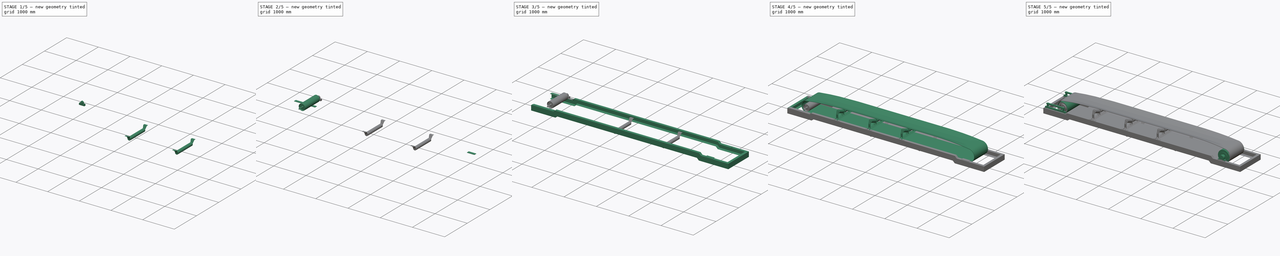
[diagram: build sequence overview — one tinted view per stage of 5, left to right]
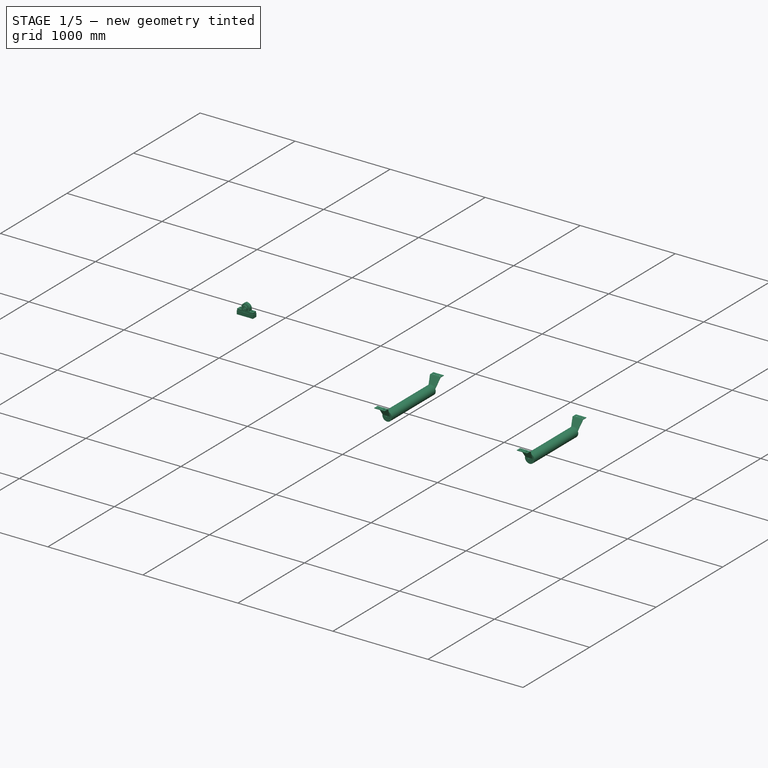
[diagram: stage 1 of 5 — iso view after this stage's code; geometry added in this stage tinted green]
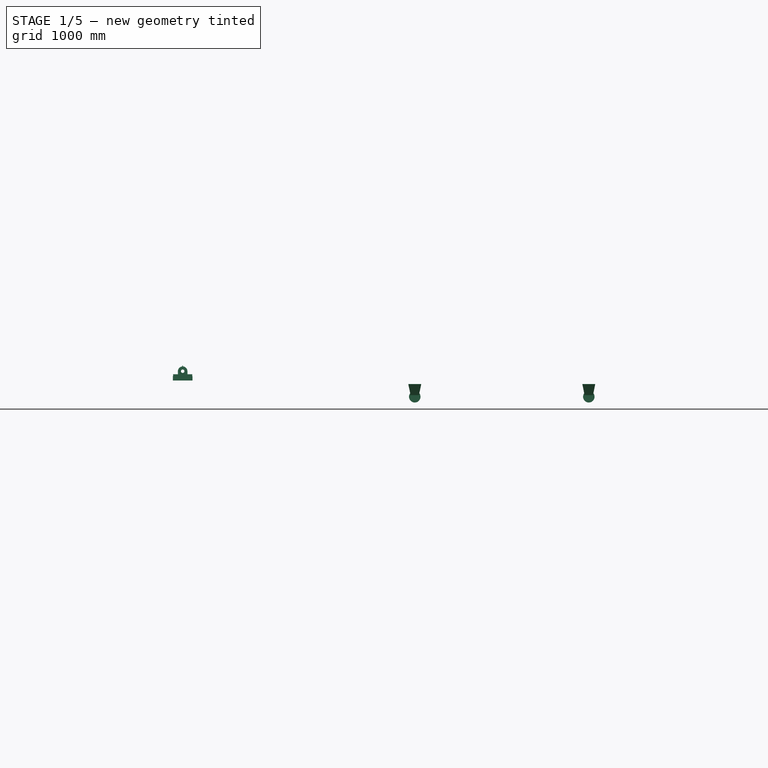
[diagram: stage 1 of 5 — front view after this stage's code; geometry added in this stage tinted green]
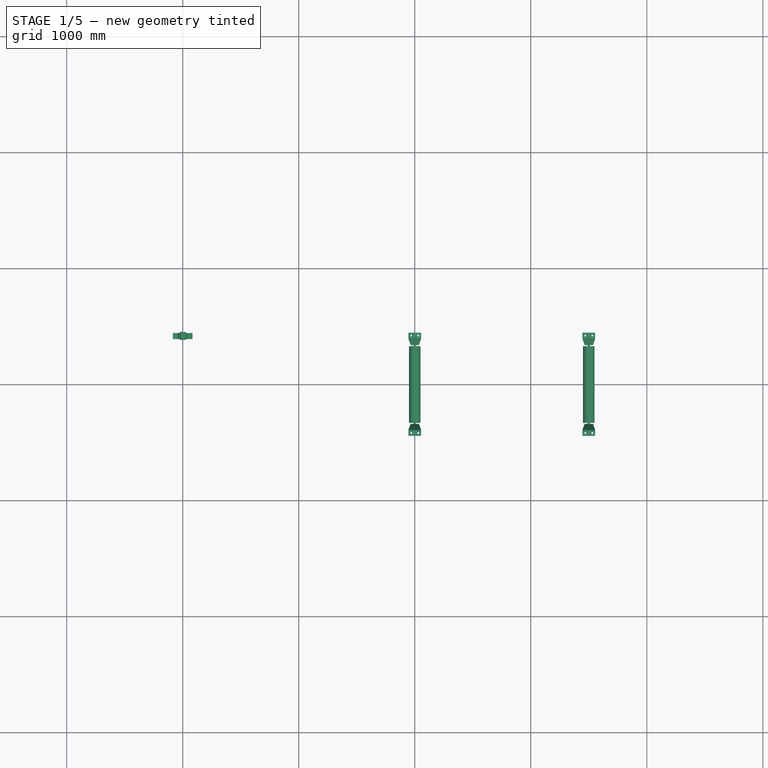
[diagram: stage 1 of 5 — top view after this stage's code; geometry added in this stage tinted green]
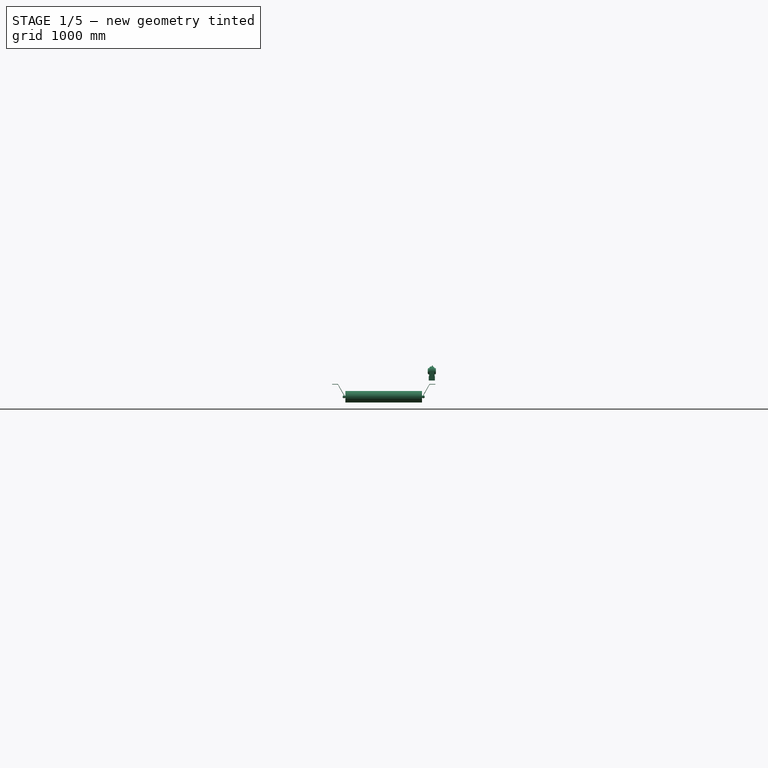
[diagram: stage 1 of 5 — right view after this stage's code; geometry added in this stage tinted green]
FCSTD DOCUMENT  (FreeCAD 0.21R33668 +26 (Git))
Label: BeltCv600BAssy2
License: All rights reserved
LicenseURL: https://en.wikipedia.org/wiki/All_rights_reserved
objects: Sketcher::SketchObject×12, Part::FeaturePython×10, App::Part×9, Part::Feature×8, Part::Extrusion×7, Part::Mirroring×3, Spreadsheet::Sheet×3, Part::Compound×2, Part::Sweep×2, TechDraw::DrawSVGTemplate×1, TechDraw::DrawViewPart×1, TechDraw::DrawPage×1, Part::MultiFuse×1
note: 43 computed .brp shape members not serialized (recipe doc carries the construction recipe); baked Part::Feature solids carry a one-line shape summary decoded from their .brp

FEATURE [Part::Feature] Part__Feature003  label="UCP206FC"
  Placement = pos=(-0.4,-415,1.07e-13) rot=(1,0,0;1.5708rad)
  shape: bbox 165 x 70 x 92.1 mm, 127 faces (baked)
FEATURE [Part::FeaturePython] Clone  label="UCP206FC001"  # Draft clone (typed FeaturePython)
  AttacherType = Attacher::AttachEngine3D
  Fuse = false
  Objects = -> [Part__Feature003]
  Placement = pos=(-0.4,415,1.07e-13) rot=(0,0.707107,0.707107;3.14159rad)
  Scale = (1,1,1)
FEATURE [Part::FeaturePython] Rectang  # WARN: FeaturePython — macro-defined, semantics opaque (R4)
  B = 200
  H = 60
  Placement = pos=(4495.9,-414.9,-188.9) rot=(0,0,1;0rad)
  sface = 0
FEATURE [Sketcher::SketchObject] Sketch011
  FullyConstrained = true
  MapMode = 5
  Placement = pos=(-0.4,-415,-42.9) rot=(1,0,0;3.14159rad)
  Support = -> [Part__Feature003]
  sketch-geometry (5):
    g0: LineSegment StartX=-85 StartY=-26.5 StartZ=0 EndX=-85 EndY=26.5 EndZ=0
    g1: LineSegment StartX=-85 StartY=26.5 StartZ=0 EndX=85 EndY=26.5 EndZ=0
    g2: LineSegment StartX=85 StartY=26.5 StartZ=0 EndX=85 EndY=-26.5 EndZ=0
    g3: LineSegment StartX=85 StartY=-26.5 StartZ=0 EndX=-85 EndY=-26.5 EndZ=0
    g4: GeomPoint X=0 Y=0 Z=0
  constraints (12):
    c: Coincident(g0,g1)
    c: Coincident(g1,g2)
    c: Coincident(g2,g3)
    c: Coincident(g3,g0)
    c: Horizontal(g1)
    c: Horizontal(g3)
    c: Vertical(g0)
    c: Vertical(g2)
    c: Symmetric(g1,g0,g4)
    c: Coincident(g4,g-1)
    c: DistanceY(g2,g2) = 53
    c: DistanceX(g1,g1) = 170
FEATURE [Part::Extrusion] Extrude008
  Base = -> Sketch011
  Dir = (0,-2e-16,-1)
  DirMode = 2
  FaceMakerClass = Part::FaceMakerBullseye
  LengthFwd = 37.5
  LengthRev = 0
  Solid = true
  Symmetric = false
FEATURE [Part::Mirroring] Mirror002  label="Extrude008 (mirrored)"
  Base = (4000,0,0)
  Normal = (0,-1,0)
  Source = -> Extrude008
FEATURE [App::Part] Part006  label="BendPulley"
  Group = -> [Clone,BendPulley,Part__Feature003,Sketch011,Extrude008,Mirror002,Rectang]
  Origin = -> Origin008
  Placement = pos=(4494.8,0,-269.9) rot=(0,-1,0;3.14159rad)
FEATURE [Part::Feature] Return_600
  Placement = pos=(3500,0,-220.2) rot=(0,0,1;1.5708rad)
  shape: bbox 110 x 890 x 159.5 mm, 37 faces (baked)
FEATURE [Part::FeaturePython] Array001  # Draft array (typed FeaturePython)
  AlwaysSyncPlacement = false
  Angle = 360
  ArrayType = 0
  Axis = (0,0,1)
  Base = -> Return_600
  Center = (0,0,0)
  Count = 2
  ExpandArray = false
  Fuse = false
  IntervalAxis = (0,0,0)
  IntervalX = (-1500,0,0)
  IntervalY = (0,100,0)
  IntervalZ = (0,0,100)
  NumberCircles = 3
  NumberPolar = 5
  NumberX = 2
  NumberY = 1
  NumberZ = 1
  PlacementList = 2 placements: [(3500,0,-220.2),(2000,0,-220.2)]
  RadialDistance = 50
  ScaleList = (2) [(1,1,1),(1,1,1)]
  Symmetry = 1
  TangentialDistance = 25
FEATURE [Part::Feature] Self_Aligning_Return_600
  Placement = pos=(500.1,2.22e-13,-220.3) rot=(0,0,1;1.5708rad)
  shape: bbox 268 x 890 x 310 mm, 134 faces, 5 solids (baked)
FEATURE [Spreadsheet::Sheet] Spreadsheet002  label="Spreadsheet_Assy"
  cells = A2='CenterDistance C0; B2(C0)=5000; A3='BeltWidth B0; B3(B0)=600; C3=400; D3=450; E3=500; F3=600; G3=700; H3=750; I3=800; J3=900; K3=1000; A4='Belt b1; B4(b1)=210; C4=145; D4=165; E4=180; F4=210; G4=250; H4=265; I4=280; J4=315; K4=345; A5='Belt b2; B5(b2)=195; C5==(C3 - C4) / 2; D5==(D3 - D4) / 2; E5==(E3 - E4) / 2; F5==(F3 - F4) / 2; G5==(G3 - G4) / 2; H5==(H3 - H4) / 2; I5==(I3 - I4) / 2; J5==(J3 - J4) / 2; K5==(K3 - K4) / 2; A6='BeltThickness t0; B6(t0)=10; C6=10; D6=10; E6=10; F6=10; G6=10; H6=10; I6=10; J6=10; K6=10; A7='HeadPullyDia D0; B7(D0)=360; C7=300; D7=300; E7=360; F7=360; G7=360; H7=460; I7=460; J7=520; K7=520; A8='TailPullyDia d1; B8(d1)=300; C8=260; D8=260; E8=300; F8=300; G8=300; H8=390; I8=390; J8=440; K8=440; A9='SnapPullyDia d2; B9(d2)=200; C9=200; D9=200; E9=200; F9=200; G9=200; H9=200; I9=200; J9=200; K9=200; A10='SnapPully Ls; B10(Ls)=500; C10=400; D10=400; E10=400; F10=500; G10=500; H10=500; I10=500; J10=500; K10=500; A11='SnapPully h0; B11(h0)=180; C11=180; D11=180; E11=160; F11=180; G11=180; H11=180; I11=180; J11=180; K11=180; A12='hontaihaba W; B12=910; C12=710; D12=760; E12=810; F12=910; G12=910; H12=910; I12=910; J12=910; K12=910; A13='hontai _h; B13=103.5; C13=103.5; D13=103.5; E13=103.5; F13=103.5; G13=103.5; H13=103.5; I13=103.5; J13=103.5; K13=103.5; A14='hontai_z; B14=16; C14=16; D14=16; E14=16; F14=16; G14=16; H14=16; I14=16; J14=16; K14=16; A15='takeup_x; B15=-403.47; C15=-403.47; D15=-403.47; E15=-403.47; F15=-403.47; G15=-403.47; H15=-403.47; I15=-403.47; J15=-403.47; K15=-403.47; A16='takeup_y; B16=-410; C16=-362.8; D16=-362.8; E16=-362.8; F16=-410; G16=-410; H16=-410; I16=-410; J16=-410; K16=-410; A17='takeup_z; B17=-57; C17=-87; D17=-87; E17=-87; F17=-57; G17=-57; H17=-57; I17=-57; J17=-57; K17=-57; A18='carrierPitch  cp; B18=1000; A19='returnPitch rp; B19=1500
FEATURE [App::Part] Part003  label="Assy600B"
  Group = -> [Carrier_600,Array,Part002,CPM2_4145,Part,Part005,Self_Aligning_Carrier_600,Part006,Return_600,Array001,Self_Aligning_Return_600,Spreadsheet002]
  Origin = -> Origin005
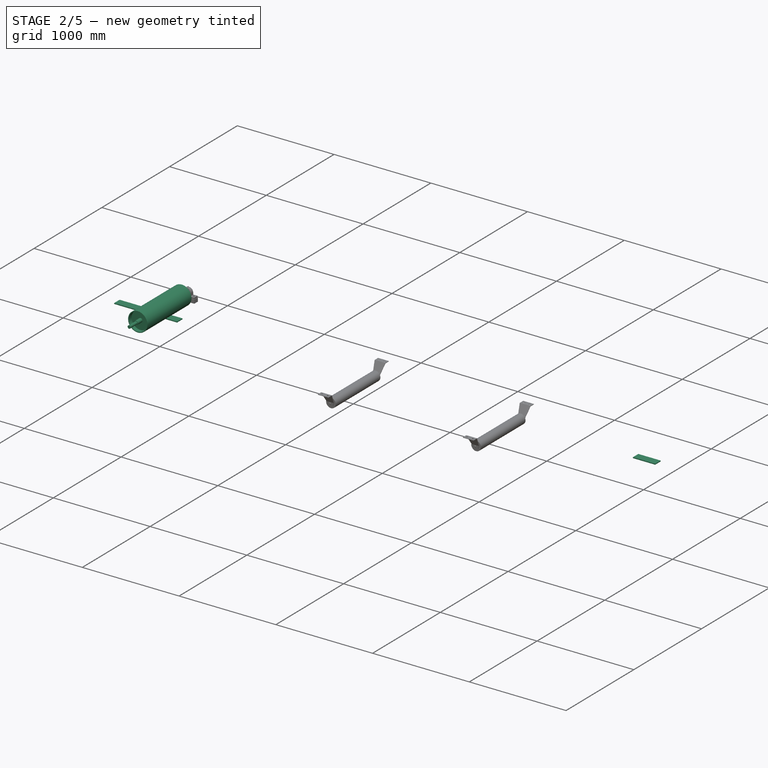
[diagram: stage 2 of 5 — iso view after this stage's code; geometry added in this stage tinted green]
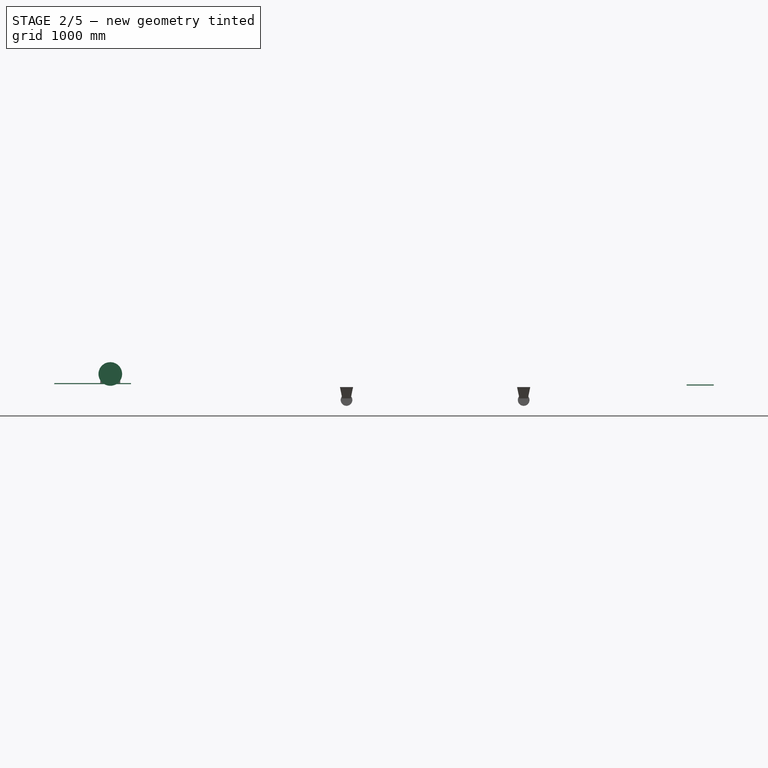
[diagram: stage 2 of 5 — front view after this stage's code; geometry added in this stage tinted green]
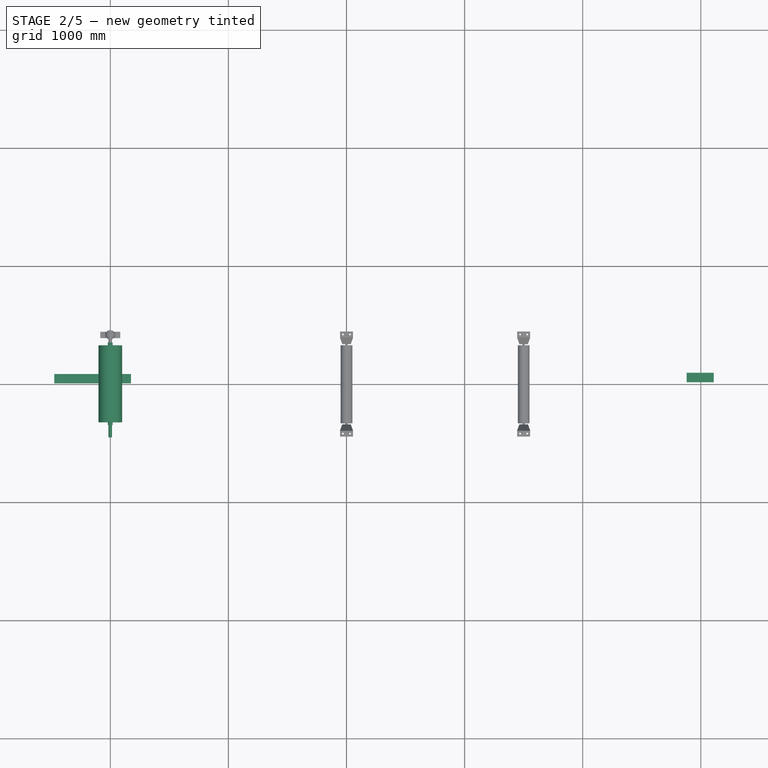
[diagram: stage 2 of 5 — top view after this stage's code; geometry added in this stage tinted green]
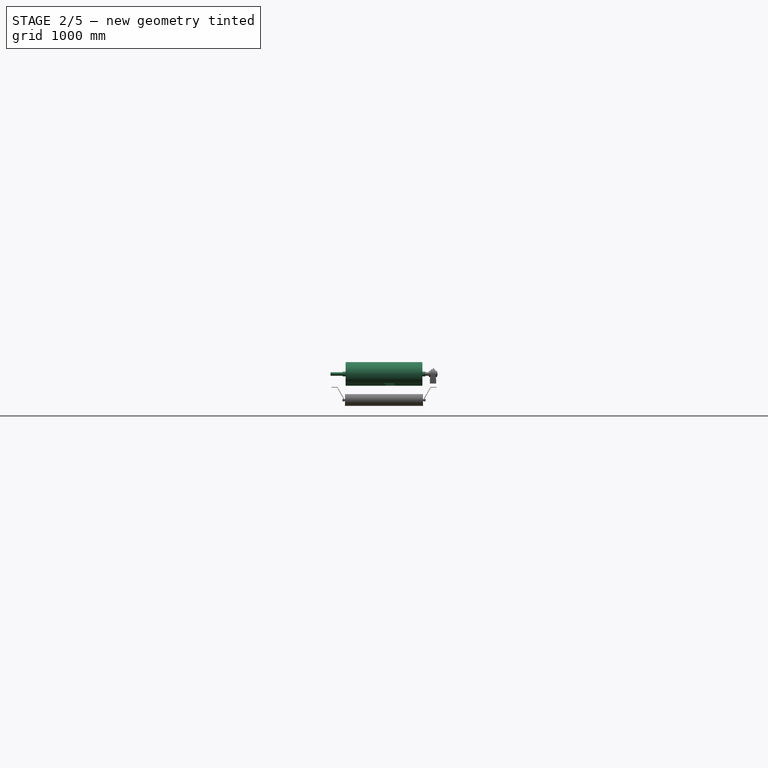
[diagram: stage 2 of 5 — right view after this stage's code; geometry added in this stage tinted green]
FEATURE [Sketcher::SketchObject] Sketch008
  FullyConstrained = false
  Placement = pos=(0,0,0) rot=(1,0,0;1.5708rad)
  sketch-geometry (7):
    g0: LineSegment StartX=-500 StartY=-86 StartZ=0 EndX=190 EndY=-86 EndZ=0
    g1: LineSegment StartX=190 StartY=-86 StartZ=0 EndX=237 EndY=-39 EndZ=0
    g2: LineSegment StartX=237 StartY=-39 StartZ=0 EndX=4691 EndY=-39 EndZ=0
    g3: LineSegment StartX=4691 StartY=-39 StartZ=0 EndX=4750 EndY=-98 EndZ=0
    g4: LineSegment StartX=4750 StartY=-98 StartZ=0 EndX=5600 EndY=-98 EndZ=0
    g5: Circle CenterX=0 CenterY=0 CenterZ=0 NormalX=0 NormalY=0 NormalZ=1 AngleXU=0 Radius=137.099
    g6: Circle CenterX=5000 CenterY=-19 CenterZ=0 NormalX=0 NormalY=0 NormalZ=1 AngleXU=0 Radius=157.907
  constraints (19):
    c: Horizontal(g0)
    c: Coincident(g0,g1)
    c: Coincident(g1,g2)
    c: Horizontal(g2)
    c: Coincident(g2,g3)
    c: Coincident(g3,g4)
    c: Horizontal(g4)
    c: Coincident(g5,g-1)
    c: DistanceX(g0,g5) = 500
    c: Distance(g5,g0) = 86
    c: DistanceX(g5,g0) = 190
    c: Angle(g1,g0) = 2.35619
    c: DistanceY(g0,g1) = 47
    c: DistanceX(g5,g6) = 5000
    c: DistanceX(g6,g4) = 600
    c: DistanceY(g3,g2) = 59
    c: DistanceY(g-1,g6) = -19
    c: DistanceX(g3,g6) = 250
    c: Angle(g4,g3) = 2.35619
FEATURE [Part::FeaturePython] ChannelSteel  # WARN: FeaturePython — macro-defined, semantics opaque (R4)
  B = 75
  H = 150
  L = 1000
  Placement = pos=(0,0,-236) rot=(0,0,1;1.5708rad)
  Solid = false
  g0 = 7.85
  mass = 0
  size = 3
  standard = SS
  t1 = 6.5
  t2 = 10
FEATURE [Part::Sweep] Sweep001
  Frenet = false
  Sections = -> [ChannelSteel]
  Solid = true
  Spine = -> Sketch008 [Edge1,Edge2,Edge3,Edge4,Edge5]
  Transition = 1
FEATURE [Sketcher::SketchObject] Sketch009
  FullyConstrained = true
  MapMode = 5
  Placement = pos=(0,0,-86) rot=(0,0,1;0rad)
  Support = -> [Sweep001]
  sketch-geometry (4):
    g0: LineSegment StartX=-475 StartY=5 StartZ=0 EndX=175 EndY=5 EndZ=0
    g1: LineSegment StartX=175 StartY=5 StartZ=0 EndX=175 EndY=85 EndZ=0
    g2: LineSegment StartX=175 StartY=85 StartZ=0 EndX=-475 EndY=85 EndZ=0
    g3: LineSegment StartX=-475 StartY=85 StartZ=0 EndX=-475 EndY=5 EndZ=0
  constraints (12):
    c: Coincident(g0,g1)
    c: Coincident(g1,g2)
    c: Coincident(g2,g3)
    c: Coincident(g3,g0)
    c: Horizontal(g0)
    c: Horizontal(g2)
    c: Vertical(g1)
    c: Vertical(g3)
    c: Distance(g-1,g0) = 5
    c: Distance(g1) = 80
    c: DistanceX(g-1,g0) = 175
    c: Distance(g0) = 650
FEATURE [Part::Extrusion] Extrude003
  Base = -> Sketch009
  Dir = (0,0,1)
  DirMode = 2
  FaceMakerClass = Part::FaceMakerBullseye
  LengthFwd = 9
  LengthRev = 0
  Solid = true
  Symmetric = false
FEATURE [Sketcher::SketchObject] Sketch010
  ExternalGeometry = -> [Sweep001]
  FullyConstrained = true
  MapMode = 5
  Placement = pos=(0,0,-98) rot=(0,0,1;0rad)
  Support = -> [Sweep001]
  sketch-geometry (4):
    g0: LineSegment StartX=4880 StartY=15 StartZ=0 EndX=5110 EndY=15 EndZ=0
    g1: LineSegment StartX=5110 StartY=15 StartZ=0 EndX=5110 EndY=95 EndZ=0
    g2: LineSegment StartX=5110 StartY=95 StartZ=0 EndX=4880 EndY=95 EndZ=0
    g3: LineSegment StartX=4880 StartY=95 StartZ=0 EndX=4880 EndY=15 EndZ=0
  constraints (12):
    c: Coincident(g0,g1)
    c: Coincident(g1,g2)
    c: Coincident(g2,g3)
    c: Coincident(g3,g0)
    c: Horizontal(g0)
    c: Horizontal(g2)
    c: Vertical(g1)
    c: Vertical(g3)
    c: DistanceY(g-1,g0) = 15
    c: DistanceX(g0,g0) = 230
    c: DistanceY(g1,g1) = 80
    c: DistanceX(g-3,g0) = 130
FEATURE [Part::Extrusion] Extrude004
  Base = -> Sketch010
  Dir = (0,0,1)
  DirMode = 2
  FaceMakerClass = Part::FaceMakerBullseye
  LengthFwd = 9
  LengthRev = 0
  Solid = true
  Symmetric = false
FEATURE [App::Part] Part005  label="Frame"
  Group = -> [ChannelSteel001,Extrude005,Mirror001,Compound001,Part004,Extrude006,ChannelSteel002,Fusion]
  Origin = -> Origin007
FEATURE [Part::Feature] Self_Aligning_Carrier_600
  Placement = pos=(4000,0,-32) rot=(0,0,-1;1.5708rad)
  shape: bbox 308 x 890 x 416.2 mm, 193 faces, 4 solids (baked)
FEATURE [Part::FeaturePython] BendPulley  label="bendPulley"  # WARN: FeaturePython — macro-defined, semantics opaque (R4)
  A = 50
  B = 103.5
  C = 700
  D = 200
  E = 0
  L = 650
  Placement = pos=(0,0,0) rot=(0,0,-1;1.5708rad)
  d1 = 40
  d2 = 30
  d3 = 0
  t1 = 9
  t2 = 9
  t3 = 8
  t4 = 8
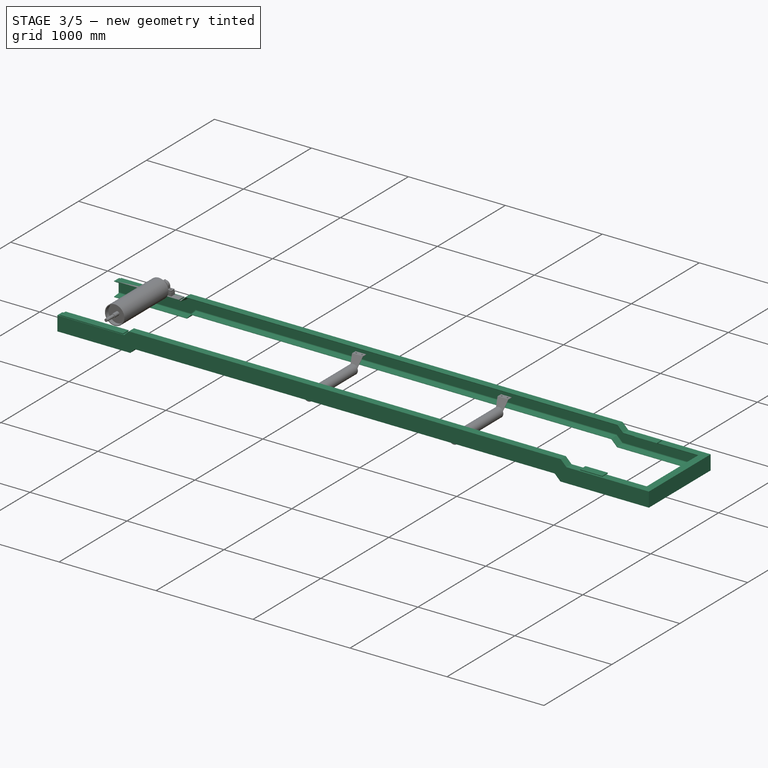
[diagram: stage 3 of 5 — iso view after this stage's code; geometry added in this stage tinted green]
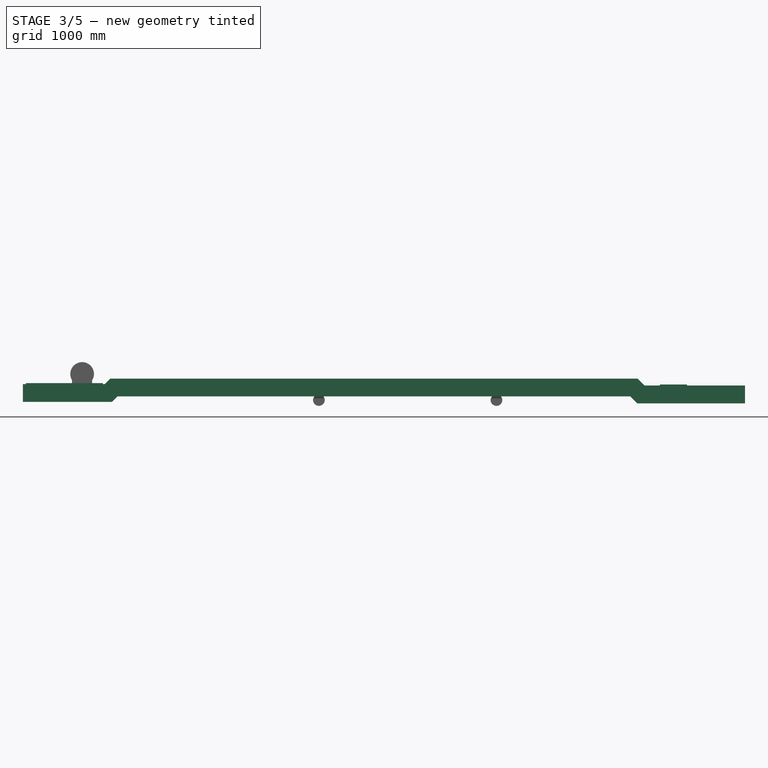
[diagram: stage 3 of 5 — front view after this stage's code; geometry added in this stage tinted green]
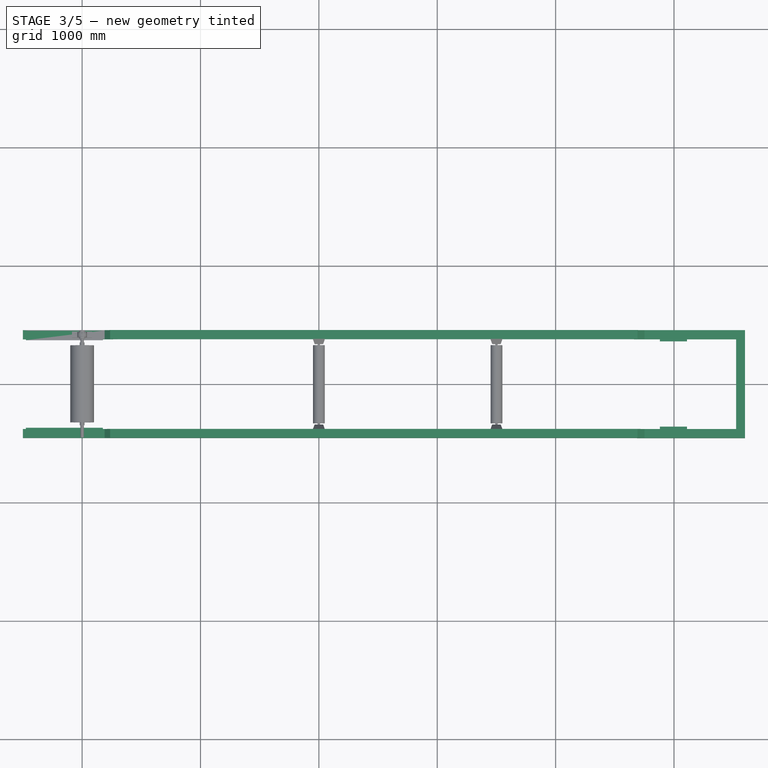
[diagram: stage 3 of 5 — top view after this stage's code; geometry added in this stage tinted green]
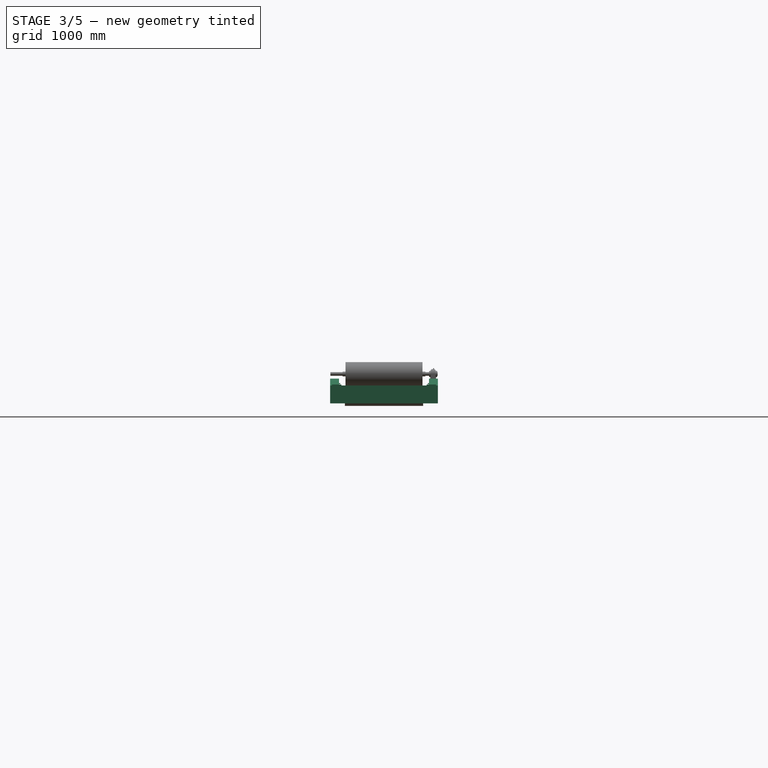
[diagram: stage 3 of 5 — right view after this stage's code; geometry added in this stage tinted green]
FEATURE [App::Part] Part004  label="frame"
  Group = -> [ChannelSteel,Sketch008,Sweep001,Sketch009,Extrude003,Sketch010,Extrude004]
  Origin = -> Origin006
  Placement = pos=(0,-455,0) rot=(0,0,1;0rad)
FEATURE [Part::Mirroring] Mirror001  label="frame (mirrored)"
  Base = (0,0,0)
  Normal = (0,-1,0)
  Source = -> Part004
FEATURE [Part::FeaturePython] ChannelSteel002  # WARN: FeaturePython — macro-defined, semantics opaque (R4)
  B = 75
  H = 150
  L = 1000
  Placement = pos=(5600,0,-98) rot=(0,1,0;3.14159rad)
  Solid = false
  g0 = 7.85
  mass = 0
  size = 3
  standard = SS
  t1 = 6.5
  t2 = 10
FEATURE [Part::Extrusion] Extrude006
  Base = -> ChannelSteel002
  Dir = (0,1,0)
  DirMode = 2
  FaceMakerClass = Part::FaceMakerBullseye
  LengthFwd = 900
  LengthRev = 0
  Solid = false
  Symmetric = true
FEATURE [Part::Compound] Compound001
  Links = -> [Mirror001,Part004]
FEATURE [Part::MultiFuse] Fusion
  Refine = true
  Shapes = -> [Compound001,Extrude006]
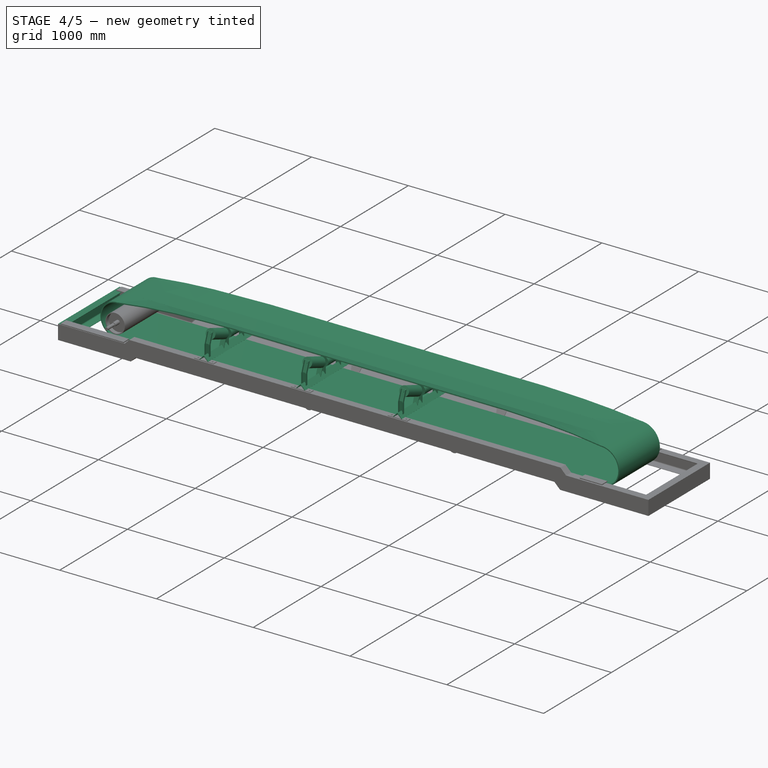
[diagram: stage 4 of 5 — iso view after this stage's code; geometry added in this stage tinted green]
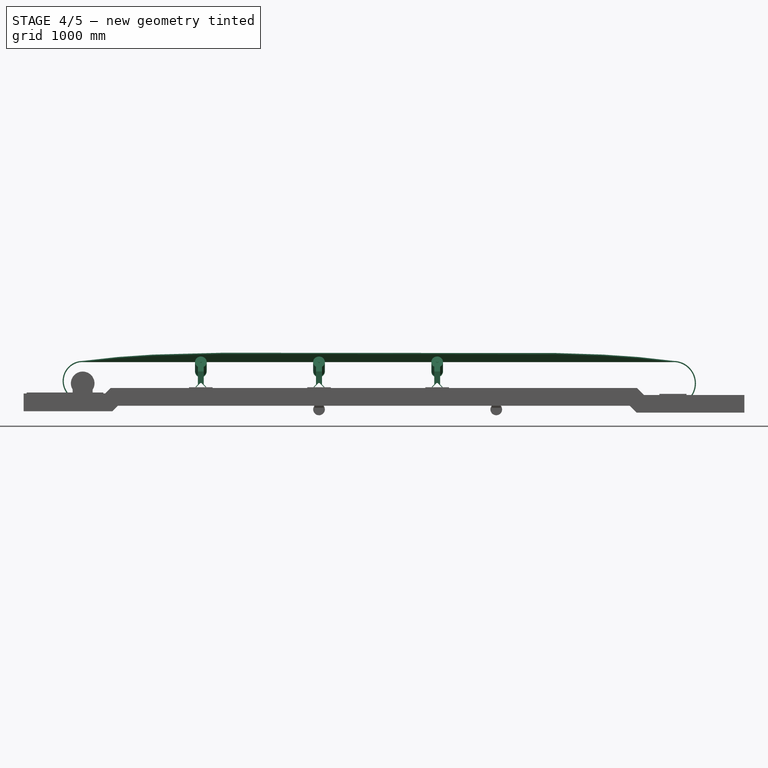
[diagram: stage 4 of 5 — front view after this stage's code; geometry added in this stage tinted green]
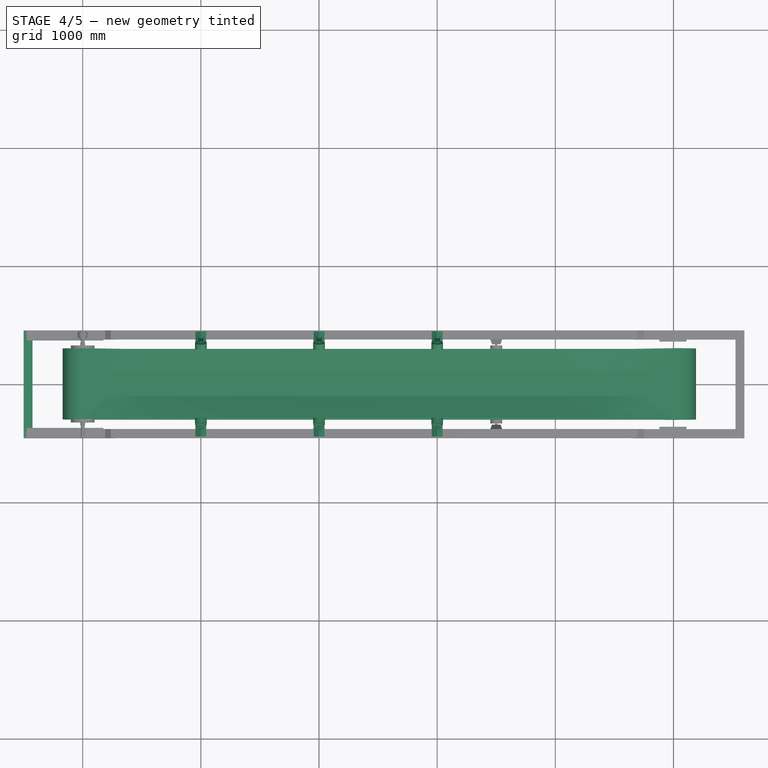
[diagram: stage 4 of 5 — top view after this stage's code; geometry added in this stage tinted green]
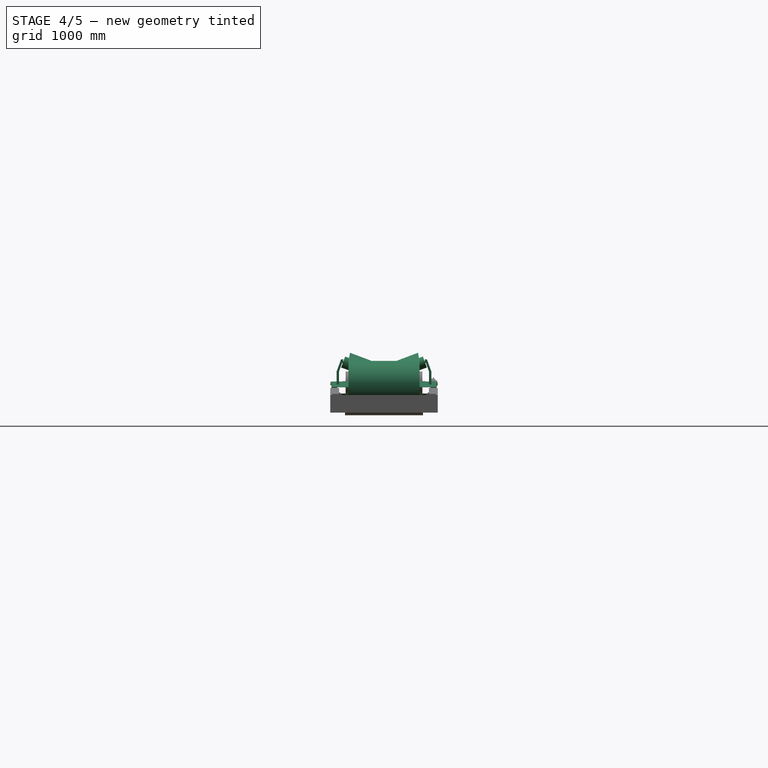
[diagram: stage 4 of 5 — right view after this stage's code; geometry added in this stage tinted green]
FEATURE [Part::Feature] Carrier_600
  Placement = pos=(1000,-445,15.7) rot=(0,0,1;1.5708rad)
  shape: bbox 200 x 890 x 266 mm, 116 faces, 3 solids (baked)
FEATURE [Sketcher::SketchObject] Sketch001
  FullyConstrained = true
  Placement = pos=(0,0,0) rot=(0.57735,0.57735,0.57735;2.0944rad)
  expr: Constraints[1] = Spreadsheet001.B0
  expr: Constraints[2] = Spreadsheet001.D0 / 2
  sketch-geometry (1):
    g0: LineSegment StartX=-300 StartY=180 StartZ=0 EndX=300 EndY=180 EndZ=0
  constraints (3):
    c: Symmetric(g0,g0,g-2)
    c: DistanceX(g0,g0) = 600
    c: Distance(g-1,g0) = 180
FEATURE [Sketcher::SketchObject] Sketch002
  FullyConstrained = true
  Placement = pos=(5000,0,0) rot=(0.57735,0.57735,0.57735;2.0944rad)
  expr: .Placement.Base.x = Spreadsheet001.C0
  expr: Constraints[1] = Spreadsheet001.B0
  expr: Constraints[2] = Spreadsheet001.D0 / 2
  sketch-geometry (1):
    g0: LineSegment StartX=-300 StartY=180 StartZ=0 EndX=300 EndY=180 EndZ=0
  constraints (3):
    c: Symmetric(g0,g0,g-2)
    c: DistanceX(g0,g0) = 600
    c: Distance(g-1,g0) = 180
FEATURE [Sketcher::SketchObject] Sketch003
  FullyConstrained = true
  Placement = pos=(1000,0,0) rot=(0.57735,0.57735,0.57735;2.0944rad)
  expr: Constraints[5] = Spreadsheet001.b2
  expr: Constraints[6] = Spreadsheet001.b2
  expr: Constraints[7] = Spreadsheet001.D0 / 2
  expr: Constraints[8] = Spreadsheet001.b1
  sketch-geometry (3):
    g0: LineSegment StartX=-288.24 StartY=246.694 StartZ=0 EndX=-105 EndY=180 EndZ=0
    g1: LineSegment StartX=-105 StartY=180 StartZ=0 EndX=105 EndY=180 EndZ=0
    g2: LineSegment StartX=105 StartY=180 StartZ=0 EndX=288.24 EndY=246.694 EndZ=0
  constraints (9):
    c: Coincident(g0,g1)
    c: Coincident(g1,g2)
    c: Angle(g2,g1) = 2.79253
    c: Angle(g1,g0) = 2.79253
    c: Symmetric(g1,g0,g-2)
    c: Distance(g2) = 195
    c: Distance(g0) = 195
    c: DistanceY(g-1,g1) = 180
    c: DistanceX(g1,g1) = 210
FEATURE [Sketcher::SketchObject] Sketch004
  FullyConstrained = true
  Placement = pos=(4000,0,0) rot=(0.57735,0.57735,0.57735;2.0944rad)
  expr: .Placement.Base.x = Spreadsheet001.C0 - 1000
  expr: Constraints[5] = Spreadsheet001.b2
  expr: Constraints[6] = Spreadsheet001.b2
  expr: Constraints[7] = Spreadsheet001.D0 / 2
  expr: Constraints[8] = Spreadsheet001.b1
  sketch-geometry (3):
    g0: LineSegment StartX=-288.24 StartY=246.694 StartZ=0 EndX=-105 EndY=180 EndZ=0
    g1: LineSegment StartX=-105 StartY=180 StartZ=0 EndX=105 EndY=180 EndZ=0
    g2: LineSegment StartX=105 StartY=180 StartZ=0 EndX=288.24 EndY=246.694 EndZ=0
  constraints (9):
    c: Coincident(g0,g1)
    c: Coincident(g1,g2)
    c: Angle(g2,g1) = 2.79253
    c: Angle(g1,g0) = 2.79253
    c: Symmetric(g1,g0,g-2)
    c: Distance(g2) = 195
    c: Distance(g0) = 195
    c: DistanceY(g-1,g1) = 180
    c: DistanceX(g1,g1) = 210
FEATURE [Sketcher::SketchObject] Sketch005
  FullyConstrained = true
  Placement = pos=(5000,0,0) rot=(1,0,0;1.5708rad)
  expr: .Placement.Base.x = Spreadsheet001.C0
  expr: Constraints[0] = Spreadsheet001.D0
  expr: Constraints[12] = Spreadsheet001.C0
  expr: Constraints[14] = Spreadsheet001.Ls
  expr: Constraints[2] = Spreadsheet001.d1
  expr: Constraints[8] = Spreadsheet001.d2 / 2
  sketch-geometry (6):
    g0: ArcOfCircle CenterX=0 CenterY=0 CenterZ=0 NormalX=0 NormalY=0 NormalZ=1 AngleXU=0 Radius=180 StartAngle=4.6307 EndAngle=7.85398
    g1: ArcOfCircle CenterX=-5000 CenterY=20 CenterZ=0 NormalX=0 NormalY=0 NormalZ=1 AngleXU=0 Radius=160 StartAngle=1.5708 EndAngle=4.71239
    g2: LineSegment StartX=-5000 StartY=180 StartZ=0 EndX=0 EndY=180 EndZ=0
    g3: LineSegment StartX=-14.688 StartY=-179.4 StartZ=0 EndX=-491.84 EndY=-140.333 EndZ=0
    g4: LineSegment StartX=-500 StartY=-140 StartZ=0 EndX=-5000 EndY=-140 EndZ=0
    g5: ArcOfCircle CenterX=-500 CenterY=-240 CenterZ=0 NormalX=0 NormalY=0 NormalZ=1 AngleXU=0 Radius=100 StartAngle=1.4891 EndAngle=1.5708
  constraints (17):
    c: Diameter(g0) = 360
    c: Coincident(g-1,g0)
    c: Diameter(g1) = 320
    c: Horizontal(g2)
    c: PointOnObject(g3,g0)
    c: Horizontal(g4)
    c: Tangent(g3,g5) = -1.5708
    c: Tangent(g4,g5) = -1.5708
    c: Radius(g5) = 100
    c: Coincident(g1,g4)
    c: Coincident(g0,g2)
    c: Tangent(g0,g3) = 1.5708
    c: DistanceX(g1,g0) = 5000
    c: Vertical(g0,g0)
    c: DistanceX(g5,g0) = 500
    c: Vertical(g1,g1)
    c: Tangent(g1,g2) = 1.5708
FEATURE [Sketcher::SketchObject] Sketch006
  FullyConstrained = true
  Placement = pos=(5000,0,0) rot=(1,0,0;1.5708rad)
  expr: .Placement.Base.x = Spreadsheet001.C0
  expr: Constraints[0] = Spreadsheet001.D0
  expr: Constraints[10] = Spreadsheet001.Ls
  expr: Constraints[20] = Spreadsheet001.t0
  expr: Constraints[22] = Spreadsheet001.t0
  expr: Constraints[29] = (Spreadsheet001.D0 - Spreadsheet001.d1) / 2
  expr: Constraints[2] = Spreadsheet001.d1
  expr: Constraints[6] = Spreadsheet001.d2 / 2
  expr: Constraints[8] = Spreadsheet001.C0
  sketch-geometry (12):
    g0: ArcOfCircle CenterX=5.51e-14 CenterY=0 CenterZ=0 NormalX=0 NormalY=0 NormalZ=1 AngleXU=0 Radius=180 StartAngle=4.6307 EndAngle=7.85398
    g1: ArcOfCircle CenterX=-5000 CenterY=20 CenterZ=0 NormalX=0 NormalY=0 NormalZ=1 AngleXU=0 Radius=160 StartAngle=1.5708 EndAngle=4.71239
    g2: LineSegment StartX=-14.6883 StartY=-179.4 StartZ=0 EndX=-491.84 EndY=-140.333 EndZ=0
    g3: LineSegment StartX=-500 StartY=-140 StartZ=0 EndX=-5000 EndY=-140 EndZ=0
    g4: ArcOfCircle CenterX=-500 CenterY=-240 CenterZ=0 NormalX=0 NormalY=0 NormalZ=1 AngleXU=0 Radius=100 StartAngle=1.4891 EndAngle=1.5708
    g5: ArcOfCircle CenterX=-5000 CenterY=20 CenterZ=0 NormalX=0 NormalY=0 NormalZ=1 AngleXU=0 Radius=170 StartAngle=1.5708 EndAngle=4.71239
    g6: LineSegment StartX=-5000 StartY=-150 StartZ=0 EndX=-500 EndY=-150 EndZ=0
    g7: ArcOfCircle CenterX=-500 CenterY=-240 CenterZ=0 NormalX=0 NormalY=0 NormalZ=1 AngleXU=0 Radius=90 StartAngle=1.4891 EndAngle=1.5708
    g8: LineSegment StartX=-492.656 StartY=-150.3 StartZ=0 EndX=-15.5041 EndY=-189.366 EndZ=0
    g9: ArcOfCircle CenterX=5.51e-14 CenterY=0 CenterZ=0 NormalX=0 NormalY=0 NormalZ=1 AngleXU=0 Radius=190 StartAngle=4.6307 EndAngle=7.85398
    g10: LineSegment StartX=5.51e-14 StartY=180 StartZ=0 EndX=1.133e-13 EndY=190 EndZ=0
    g11: LineSegment StartX=-5000 StartY=180 StartZ=0 EndX=-5000 EndY=190 EndZ=0
  constraints (32):
    c: Diameter(g0) = 360
    c: Coincident(g-1,g0)
    c: Diameter(g1) = 320
    c: Horizontal(g3)
    c: Tangent(g2,g4) = -1.5708
    c: Tangent(g3,g4) = -1.5708
    c: Radius(g4) = 100
    c: Coincident(g1,g3)
    c: DistanceX(g1,g0) = 5000
    c: Vertical(g0,g0)
    c: DistanceX(g4,g0) = 500
    c: Vertical(g1,g1)
    c: Coincident(g5,g1)
    c: Tangent(g5,g6) = -1.5708
    c: Tangent(g6,g7) = 1.5708
    c: Tangent(g8,g9) = -1.5708
    c: PointOnObject(g9,g-2)
    c: Coincident(g10,g0)
    c: Coincident(g10,g9)
    c: Coincident(g9,g0)
    c: DistanceY(g10,g10) = 10
    c: Coincident(g4,g7)
    c: DistanceY(g5,g1) = 10
    c: Vertical(g1,g5)
    c: Coincident(g11,g1)
    c: Coincident(g11,g5)
    c: Tangent(g7,g8) = 1.5708
    c: Vertical(g1,g1)
    c: Parallel(g8,g2)
    c: DistanceY(g-1,g1) = 20
    c: Parallel(g6,g3)
    c: Coincident(g2,g0)
FEATURE [Sketcher::SketchObject] Sketch007
  FullyConstrained = true
  Placement = pos=(2500,0,0) rot=(0.57735,0.57735,0.57735;2.0944rad)
  expr: .Placement.Base.x = Spreadsheet001.C0 / 2
  expr: Constraints[5] = Spreadsheet001.b2
  expr: Constraints[6] = Spreadsheet001.b2
  expr: Constraints[7] = Spreadsheet001.D0 / 2
  expr: Constraints[8] = Spreadsheet001.b1
  sketch-geometry (3):
    g0: LineSegment StartX=-288.24 StartY=246.694 StartZ=0 EndX=-105 EndY=180 EndZ=0
    g1: LineSegment StartX=-105 StartY=180 StartZ=0 EndX=105 EndY=180 EndZ=0
    g2: LineSegment StartX=105 StartY=180 StartZ=0 EndX=288.24 EndY=246.694 EndZ=0
  constraints (9):
    c: Coincident(g0,g1)
    c: Coincident(g1,g2)
    c: Angle(g2,g1) = 2.79253
    c: Angle(g1,g0) = 2.79253
    c: Symmetric(g1,g0,g-2)
    c: Distance(g2) = 195
    c: Distance(g0) = 195
    c: DistanceY(g-1,g1) = 180
    c: DistanceX(g1,g1) = 210
FEATURE [Part::Sweep] Sweep
  Frenet = false
  Sections = -> [Sketch001,Sketch003,Sketch004,Sketch002,Sketch007]
  Solid = false
  Spine = -> Sketch005 [Edge2]
  Transition = 1
FEATURE [Part::Extrusion] Extrude002
  Base = -> Sweep
  Dir = (0,0,1)
  DirMode = 0
  FaceMakerClass = Part::FaceMakerBullseye
  LengthFwd = 10
  LengthRev = 0
  Solid = false
  Symmetric = false
FEATURE [Part::Extrusion] Extrude
  Base = -> Sketch006
  Dir = (0,-1,2e-16)
  DirMode = 2
  FaceMakerClass = Part::FaceMakerBullseye
  LengthFwd = 600
  LengthRev = 0
  Solid = true
  Symmetric = true
  expr: LengthFwd = Spreadsheet001.B0
FEATURE [Spreadsheet::Sheet] Spreadsheet001  label="Spreadsheet_Belt"
  cells = A2='CenterDistance C0; B2(C0)=5000; A3='BeltWidth B0; B3(B0)=600; C3=400; D3=450; E3=500; F3=600; G3=700; H3=750; I3=800; J3=900; K3=1000; A4='Belt b1; B4(b1)=210; C4=145; D4=165; E4=180; F4=210; G4=250; H4=265; I4=280; J4=315; K4=345; A5='Belt b2; B5(b2)=195; C5==(C3 - C4) / 2; D5==(D3 - D4) / 2; E5==(E3 - E4) / 2; F5==(F3 - F4) / 2; G5==(G3 - G4) / 2; H5==(H3 - H4) / 2; I5==(I3 - I4) / 2; J5==(J3 - J4) / 2; K5==(K3 - K4) / 2; A6='BeltThickness t0; B6(t0)=10; C6=10; D6=10; E6=10; F6=10; G6=10; H6=10; I6=10; J6=10; K6=10; A7='HeadPullyDia D0; B7(D0)=360; C7=300; D7=300; E7=360; F7=360; G7=360; H7=460; I7=460; J7=520; K7=520; A8='TailPullyDia d1; B8(d1)=320; C8=260; D8=260; E8=300; F8=300; G8=300; H8=390; I8=390; J8=440; K8=440; A9='SnapPullyDia d2; B9(d2)=200; C9=200; D9=200; E9=200; F9=200; G9=200; H9=200; I9=200; J9=200; K9=200; A10='SnapPully Ls; B10(Ls)=500; C10=500; D10=500; E10=500; F10=500; G10=500; H10=500; I10=500; J10=500; K10=500; A11='SnapPully h0; B11(h0)=180; C11=180; D11=180; E11=180; F11=180; G11=180; H11=180; I11=180; J11=180; K11=180
FEATURE [App::Part] Part002  label="Belt"
  Group = -> [Spreadsheet001,Sketch006,Extrude,Sketch002,Sketch001,Sketch005,Sketch003,Sketch004,Sketch007,Sweep,Extrude002]
  Origin = -> Origin004
  Placement = pos=(0,0,-20) rot=(0,0,1;0rad)
FEATURE [Part::FeaturePython] Array  # Draft array (typed FeaturePython)
  AlwaysSyncPlacement = false
  Angle = 360
  ArrayType = 0
  Axis = (0,0,1)
  Base = -> Carrier_600
  Center = (0,0,0)
  Count = 3
  ExpandArray = false
  Fuse = false
  IntervalAxis = (0,0,0)
  IntervalX = (1000,0,0)
  IntervalY = (0,100,0)
  IntervalZ = (0,0,100)
  NumberCircles = 3
  NumberPolar = 5
  NumberX = 3
  NumberY = 1
  NumberZ = 1
  PlacementList = 3 placements: arithmetic series from (1000,-445,15.7) step (1000,0,0) to (3000,-445,15.7)
  RadialDistance = 50
  ScaleList = (3) [(1,1,1),(1,1,1),(1,1,1)]
  Symmetry = 1
  TangentialDistance = 25
FEATURE [Part::FeaturePython] ChannelSteel001  # WARN: FeaturePython — macro-defined, semantics opaque (R4)
  B = 75
  H = 150
  L = 1000
  Placement = pos=(-500,0,0) rot=(0,0,1;0rad)
  Solid = false
  g0 = 7.85
  mass = 0
  size = 3
  standard = SS
  t1 = 6.5
  t2 = 10
FEATURE [Part::Extrusion] Extrude005
  Base = -> ChannelSteel001
  Dir = (0,1,0)
  DirMode = 2
  FaceMakerClass = Part::FaceMakerBullseye
  LengthFwd = 900
  LengthRev = 0
  Placement = pos=(0,0,-236) rot=(0,0,1;0rad)
  Solid = false
  Symmetric = true
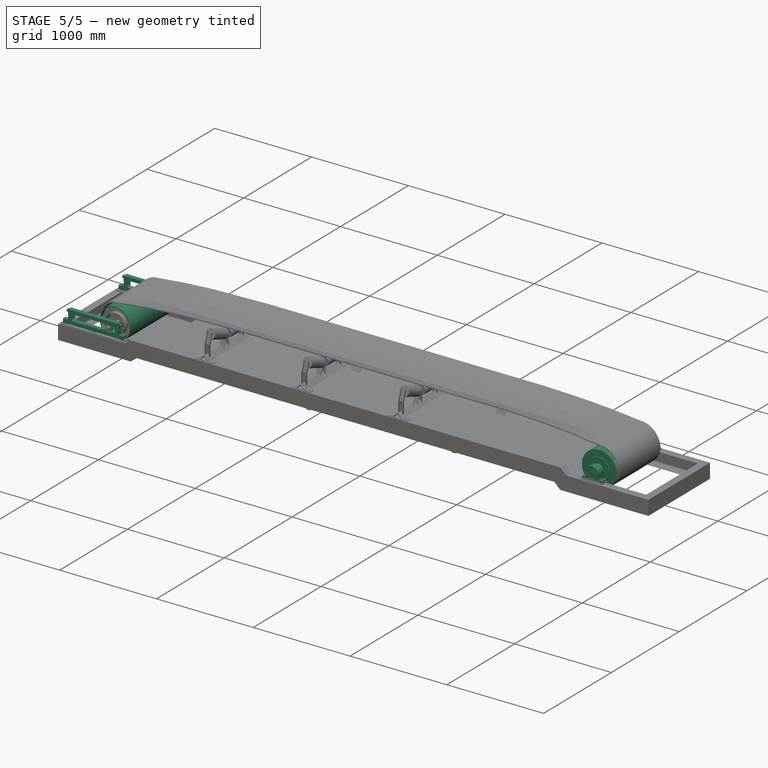
[diagram: stage 5 of 5 — iso view after this stage's code; geometry added in this stage tinted green]
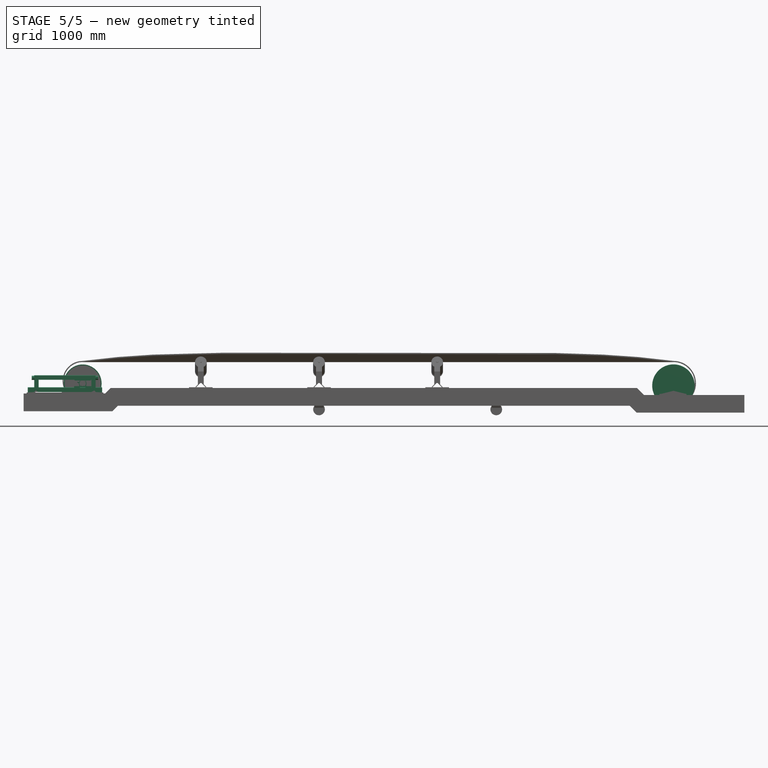
[diagram: stage 5 of 5 — front view after this stage's code; geometry added in this stage tinted green]
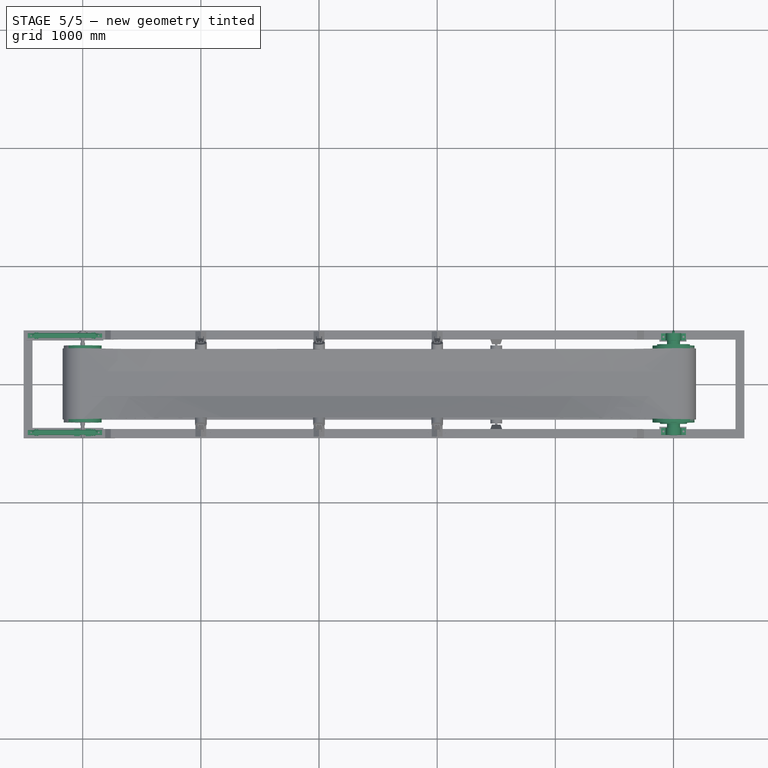
[diagram: stage 5 of 5 — top view after this stage's code; geometry added in this stage tinted green]
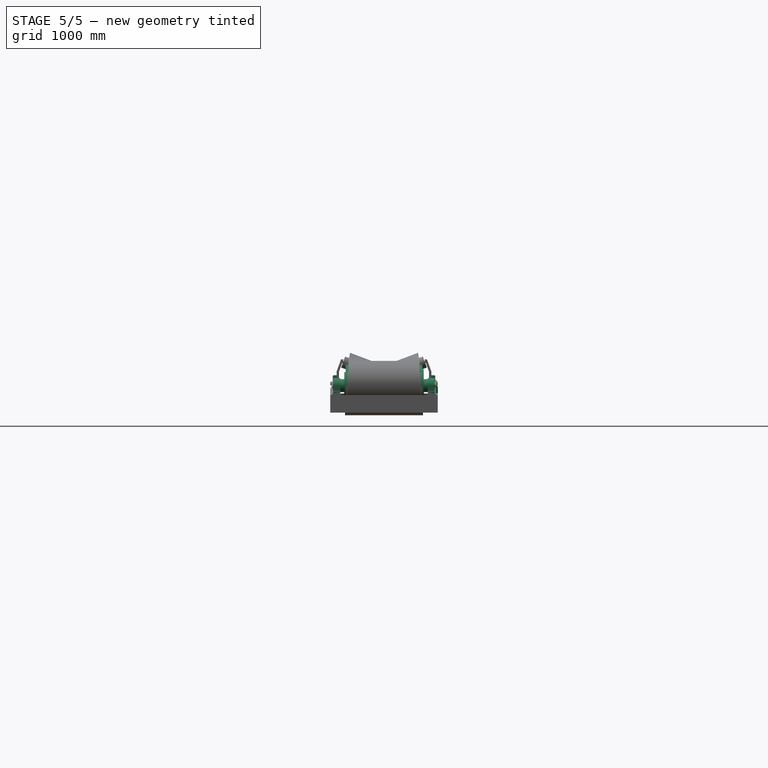
[diagram: stage 5 of 5 — right view after this stage's code; geometry added in this stage tinted green]
FEATURE [Part::Feature] Part__Feature  label="UCT204-Nipple"
  Placement = pos=(402.082,85.3824,0) rot=(0.519988,-0.677661,0.519988;1.95044rad)
  shape: bbox 18.99 x 12.27 x 15.73 mm, 44 faces (baked)
FEATURE [Part::Feature] Part__Feature001  label="UCT204-Housing2"
  Placement = pos=(435,77,0) rot=(0,0,1;0rad)
  shape: bbox 145.2 x 120 x 60 mm, 83 faces (baked)
FEATURE [Part::Feature] Part__Feature002  label="UCTL204-300-Frame"
  Placement = pos=(285,77,0) rot=(0,0,1;0rad)
  shape: bbox 630 x 146 x 56.5 mm, 312 faces (baked)
FEATURE [App::Part] UCTL204J_300_0  label="UCTL204J-300-0"
  Group = -> [Part__Feature,Part__Feature001,Part__Feature002]
  Origin = -> Origin
FEATURE [App::Part] _______________________________20_v1  label="テークアップユニット_20 v1"
  Group = -> [UCTL204J_300_0]
  Origin = -> Origin001
  Placement = pos=(-435,-410,-77) rot=(1,0,0;1.5708rad)
  expr: .Placement.Base.y = -Spreadsheet.Y
FEATURE [Part::FeaturePython] Take_upPulley  # WARN: FeaturePython — macro-defined, semantics opaque (R4)
  A = 50
  B = 50
  C = 768
  D = 320
  E = 0
  L = 650
  Placement = pos=(0,0,0) rot=(0,0,-1;1.5708rad)
  d1 = 30
  d2 = 20
  d3 = 0
  t1 = 9
  t2 = 9
  t3 = 8
  t4 = 8
FEATURE [Sketcher::SketchObject] Sketch
  FullyConstrained = true
  sketch-geometry (10):
    g0: LineSegment StartX=-600 StartY=-625 StartZ=0 EndX=-600 EndY=625 EndZ=0
    g1: LineSegment StartX=-600 StartY=625 StartZ=0 EndX=600 EndY=625 EndZ=0
    g2: LineSegment StartX=600 StartY=625 StartZ=0 EndX=600 EndY=-625 EndZ=0
    g3: LineSegment StartX=600 StartY=-625 StartZ=0 EndX=-600 EndY=-625 EndZ=0
    g4: GeomPoint X=0 Y=0 Z=0
    g5: LineSegment StartX=-525 StartY=-550 StartZ=0 EndX=-525 EndY=550 EndZ=0
    g6: LineSegment StartX=-525 StartY=550 StartZ=0 EndX=525 EndY=550 EndZ=0
    g7: LineSegment StartX=525 StartY=550 StartZ=0 EndX=525 EndY=-550 EndZ=0
    g8: LineSegment StartX=525 StartY=-550 StartZ=0 EndX=-525 EndY=-550 EndZ=0
    g9: GeomPoint X=0 Y=0 Z=0
  constraints (24):
    c: Coincident(g0,g1)
    c: Coincident(g1,g2)
    c: Coincident(g2,g3)
    c: Coincident(g3,g0)
    c: Horizontal(g1)
    c: Horizontal(g3)
    c: Vertical(g0)
    c: Vertical(g2)
    c: Symmetric(g1,g0,g4)
    c: Coincident(g4,g-1)
    c: Distance(g0) = 1250
    c: Distance(g4,g0) = 600
    c: Coincident(g5,g6)
    c: Coincident(g6,g7)
    c: Coincident(g7,g8)
    c: Coincident(g8,g5)
    c: Horizontal(g6)
    c: Horizontal(g8)
    c: Vertical(g5)
    c: Vertical(g7)
    c: Symmetric(g6,g5,g9)
    c: Coincident(g9,g4)
    c: Distance(g5,g0) = 75
    c: Distance(g5,g1) = 75
FEATURE [Part::Mirroring] Mirror  label="テークアップユニット_20 v1 (mirrored)"
  Base = (-400,0,0)
  Normal = (0,-1,0)
  Source = -> _______________________________20_v1
FEATURE [Part::Compound] Compound  label="takeUp"
  Links = -> [Mirror,_______________________________20_v1]
FEATURE [App::Part] Part001  label="pulley"
  Group = -> [Take_upPulley]
  Origin = -> Origin003
  Placement = pos=(0,0,0) rot=(0,1,0;2.1293rad)
FEATURE [Spreadsheet::Sheet] Spreadsheet  label="Spreadsheet_takeup"
  cells = A1='beltWidth; B1='takeup d0; C1='d1=d0+10; D1='pulley D0; E1='puller L0; F1='puller C0; G1='puller B0; H1='takeup Y; A2(W0)=600; B2(d0)=6000; C2(d1)==d0 + 10; D2(D0)=320; E2(L0)=650; F2(C0)=768; G2(B0)=50; H2(Y)=410; A3=400; B3=400; C3==d0 + 10; D3=300; E3=450; F3=568; G3=50; H3=310; A4=450; B4=145; C4==d0 + 10; D4=300; E4=500; F4=618; G4=50; H4=335; A5=500; B5=127.5; C5==d0 + 10; D5=300; E5=550; F5=668; G5=50; H5=360; A6=600; B6=10; C6==d0 + 10; D6=300; E6=650; F6=768; G6=50; H6=410; A7=700; B7=300; C7==d0 + 10; D7=300; E7=750; F7=868; G7=50; H7=460; A8=750; B8=260; C8==d0 + 10; D8=300; E8=800; F8=918; G8=50; H8=485; A9=800; B9=200; C9==d0 + 10; D9=300; E9=850; F9=968; G9=50; H9=510; A10=900; B10=500; C10==d0 + 10; D10=300; E10=950; F10=1068; G10=50; H10=560; A11=1000; B11=180; C11==d0 + 10; D11=300; E11=1050; F11=1168; G11=50; H11=610
FEATURE [App::Part] Part  label="takeUpAssy20d"
  Group = -> [_______________________________20_v1,Mirror,Compound,Sketch,Part001,Spreadsheet]
  Origin = -> Origin002
FEATURE [TechDraw::DrawSVGTemplate] Template
  Height = 420
  Orientation = 1
  Template = C:/Program Files/FreeCAD 0.21/data/Mod/TechDraw/Templates/A2_Landscape_blank.svg
  Width = 594
FEATURE [TechDraw::DrawViewPart] View
  CoarseView = false
  Direction = (0,-1,0)
  Focus = 100
  HardHidden = false
  IsoCount = 0
  IsoHidden = false
  IsoVisible = false
  LockPosition = false
  Perspective = false
  Rotation = 0
  Scale = 0.1
  ScaleType = 2
  ScrubCount = 0
  SeamHidden = false
  SeamVisible = false
  SmoothHidden = false
  SmoothVisible = true
  Source = -> [Part]
  X = 297
  XDirection = (1,0,0)
  Y = 210
FEATURE [TechDraw::DrawPage] Page
  KeepUpdated = true
  NextBalloonIndex = 1
  ProjectionType = 1
  Template = -> Template
  Views = -> [View]
FEATURE [Part::FeaturePython] CPM2_4145  # WARN: FeaturePython — macro-defined, semantics opaque (R4)
  A = 650
  B1 = 500
  B2 = 600
  C = 70
  D = 360
  D1 = 356
  D2 = 228
  D3 = 278
  E = 170
  F = 0
  G1 = 30
  G2 = 30
  H = 33
  L = 863
  M = 210
  N1 = 60
  N2 = 60
  P = 75
  Placement = pos=(5000,0,-19) rot=(0,0,1;1.5708rad)
  R = 20
  a = 11
  b = 11
  d = 18
  key = 5
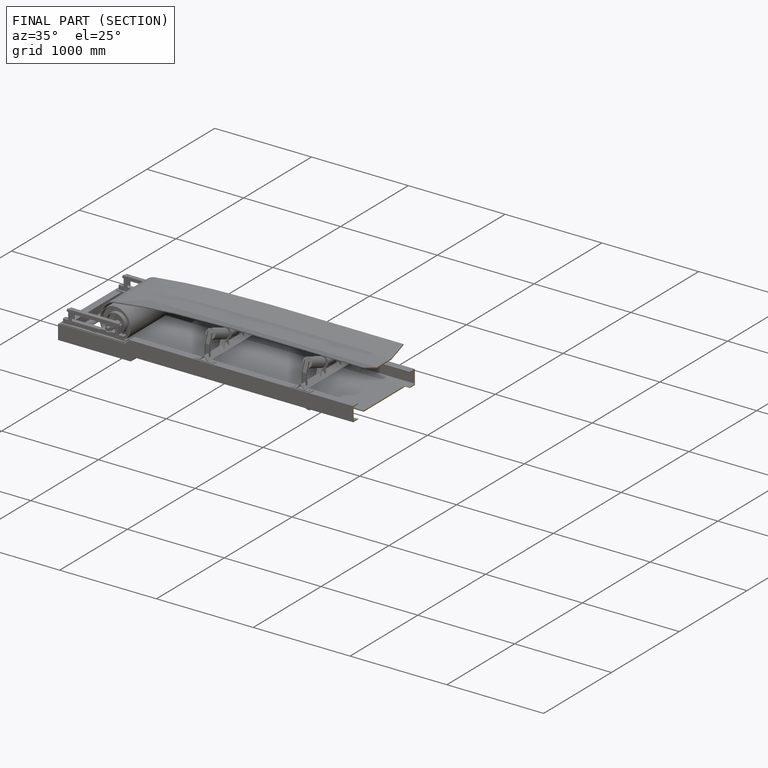
[diagram: finished part — half-section view (interior)]
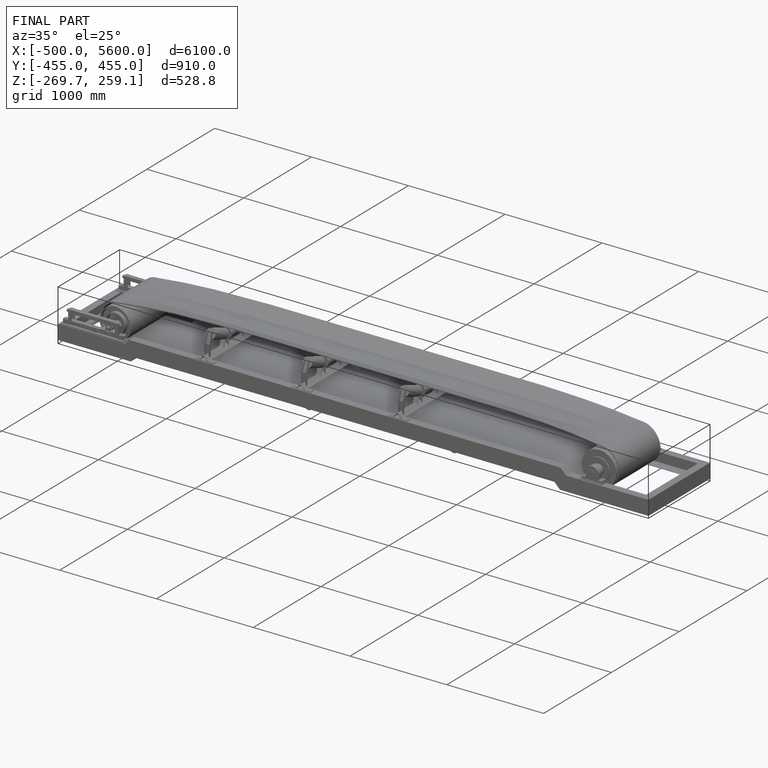
[diagram: finished part — iso view with bounding-box wireframe]
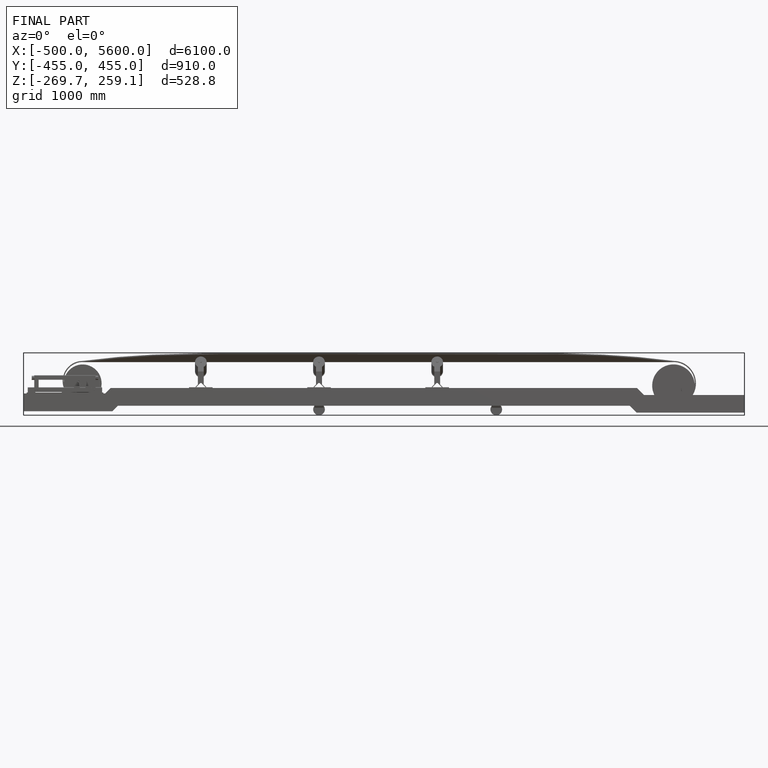
[diagram: finished part — front view with bounding-box wireframe]
